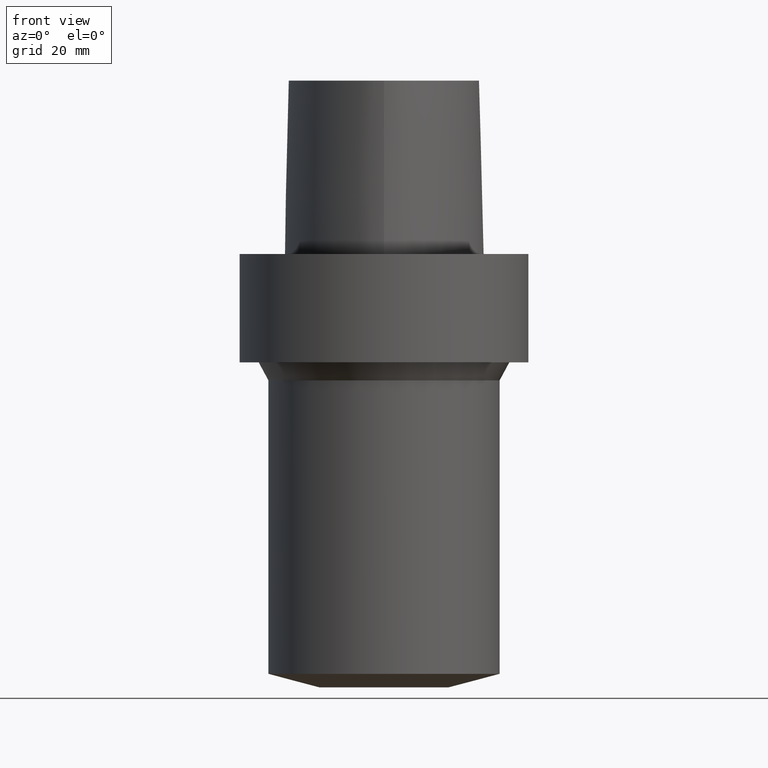
[diagram: clean part render]
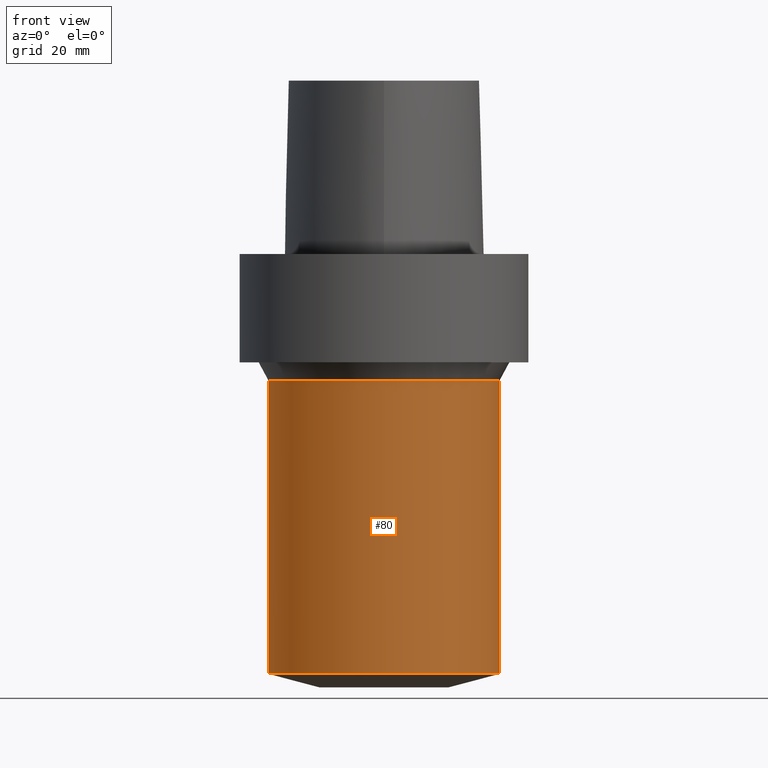
[diagram: same view with one face highlighted and labeled with its STEP entity id]
A machine part, front view. The second image highlights one B-rep face of the part: STEP entity #80.
In plain terms, the highlighted cylindrical surface (bore or boss wall) has radius 32 mm, axis along (0, 0, -1).
Its self-contained STEP definition (entity closure, byte-faithful):
#80=ADVANCED_FACE('',(#97,#98),#99,.T.);
#97=FACE_BOUND('',#504,.T.);
#98=FACE_BOUND('',#505,.T.);
#99=CYLINDRICAL_SURFACE('',#506,32.0);
#504=EDGE_LOOP('',(#538));
#505=EDGE_LOOP('',(#539));
#506=AXIS2_PLACEMENT_3D('',#540,#541,#542);
#538=ORIENTED_EDGE('',*,*,#564,.F.);
#539=ORIENTED_EDGE('',*,*,#563,.T.);
#540=CARTESIAN_POINT('',(4.63065625400644E-015,9.26131250801288E-015,-75.6243556465503));
#541=DIRECTION('',(6.12323399573677E-017,1.22464679914735E-016,-1.0));
#542=DIRECTION('',(-1.23259516440783E-032,1.0,1.22464679914735E-016));
#563=EDGE_CURVE('',#576,#576,#577,.T.);
#564=EDGE_CURVE('',#578,#578,#579,.T.);
#576=VERTEX_POINT('',#739);
#577=CIRCLE('',#740,32.0);
#578=VERTEX_POINT('',#741);
#579=CIRCLE('',#742,32.0);
#739=CARTESIAN_POINT('',(7.11818061010796E-015,32.0,-116.248711302947));
#740=AXIS2_PLACEMENT_3D('',#753,#754,#755);
#741=CARTESIAN_POINT('',(2.14313189790492E-015,32.0,-34.9999999901531));
#742=AXIS2_PLACEMENT_3D('',#756,#757,#758);
#753=CARTESIAN_POINT('',(7.11818061010796E-015,1.42363612202159E-014,-116.248711302947));
#754=DIRECTION('',(-6.12323399573677E-017,-1.22464679914735E-016,1.0));
#755=DIRECTION('',(-1.23259516440783E-032,1.0,1.22464679914735E-016));
#756=CARTESIAN_POINT('',(2.14313189790492E-015,4.28626379580984E-015,-34.9999999901531));
#757=DIRECTION('',(-6.12323399573677E-017,-1.22464679914735E-016,1.0));
#758=DIRECTION('',(-1.23259516440783E-032,1.0,1.22464679914735E-016));